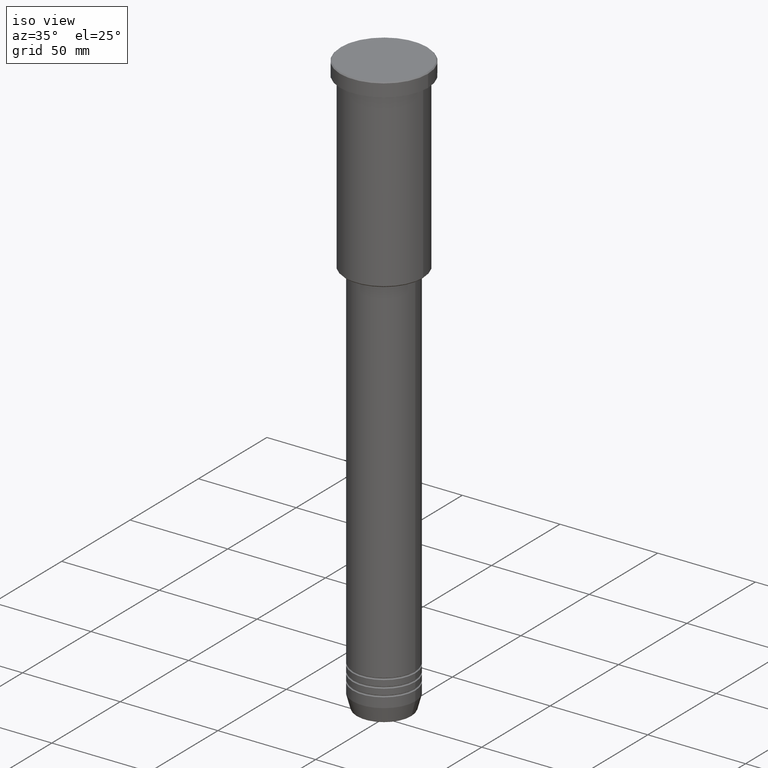
[diagram: clean part render]
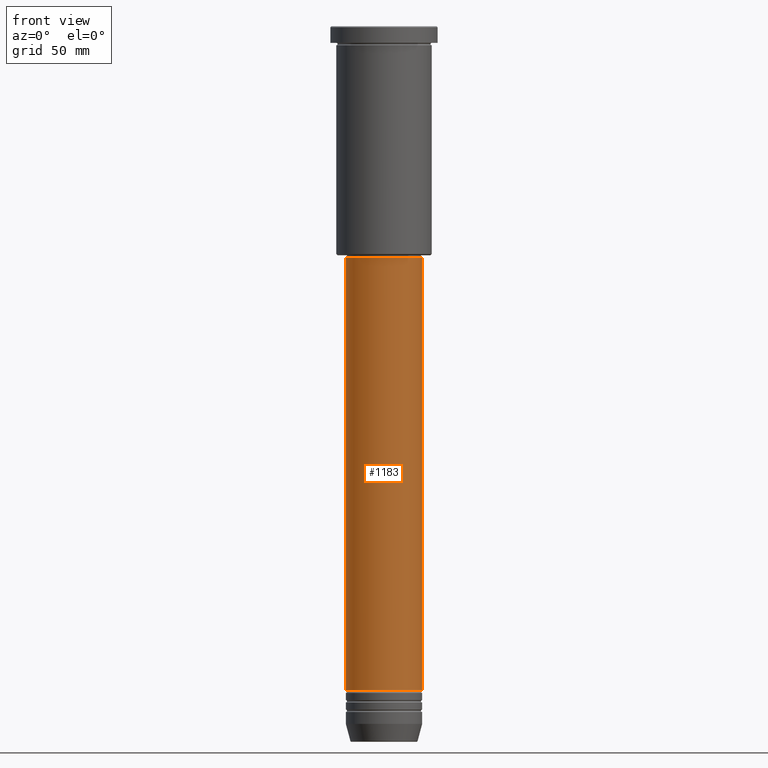
[diagram: tour spotlight — one face highlighted and labeled with its STEP entity id]
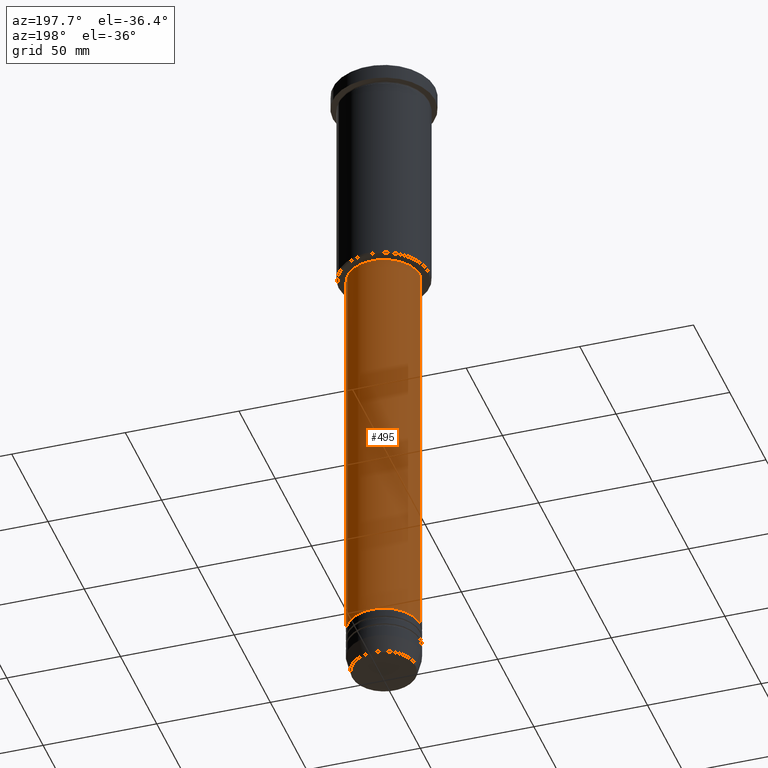
[diagram: tour spotlight — one face highlighted and labeled with its STEP entity id]
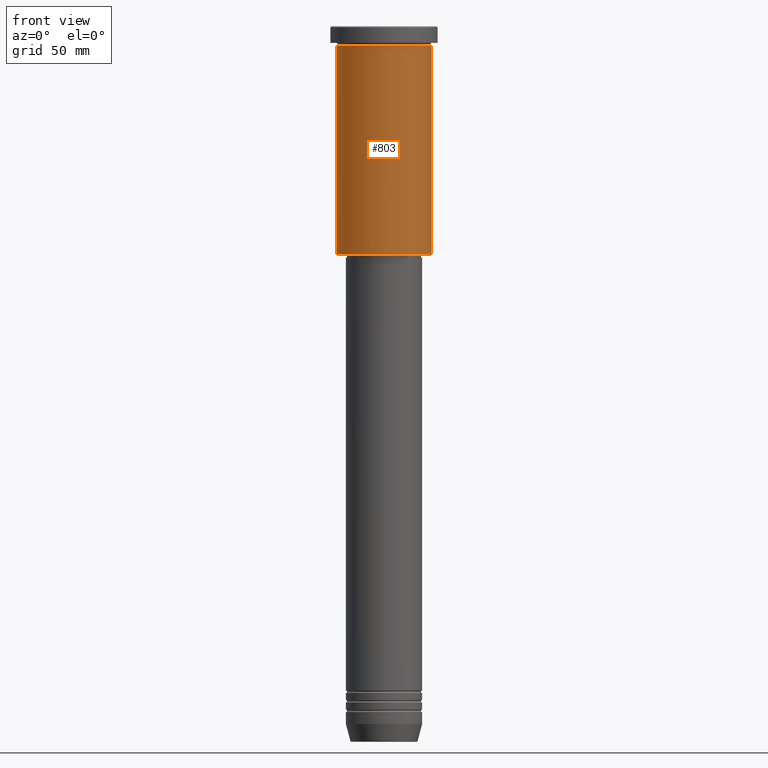
[diagram: tour spotlight — one face highlighted and labeled with its STEP entity id]
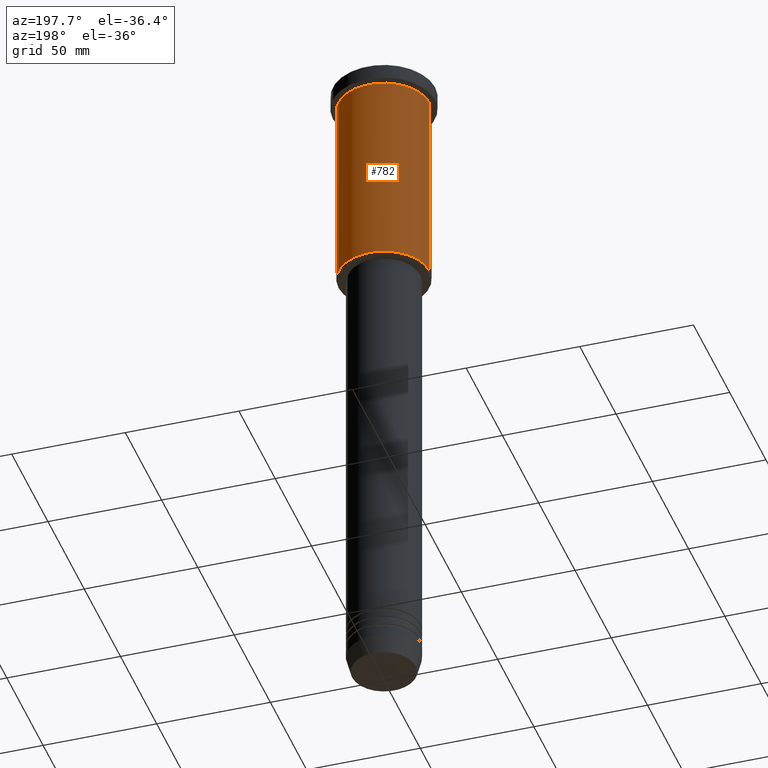
[diagram: tour spotlight — one face highlighted and labeled with its STEP entity id]
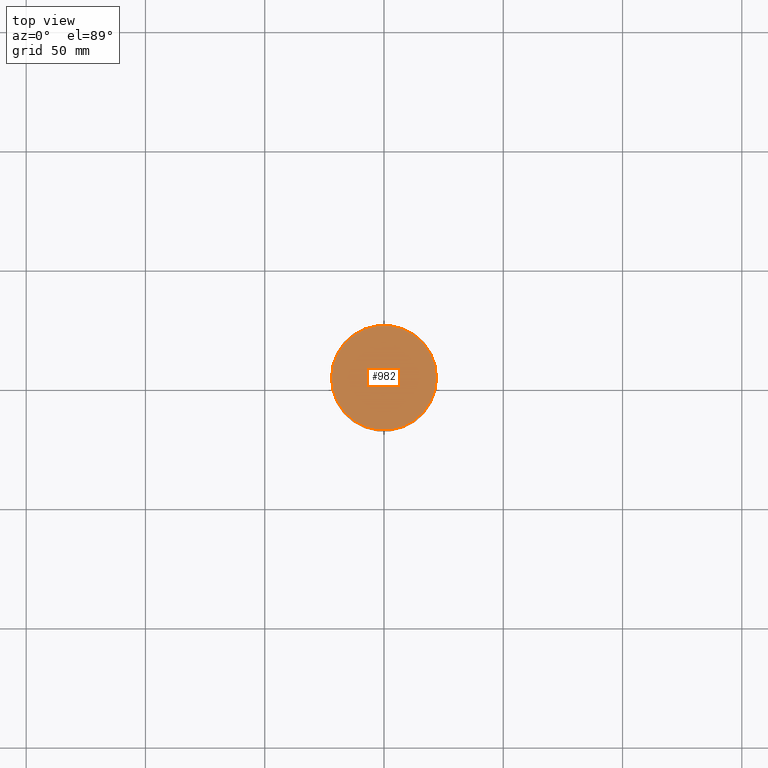
[diagram: tour spotlight — one face highlighted and labeled with its STEP entity id]
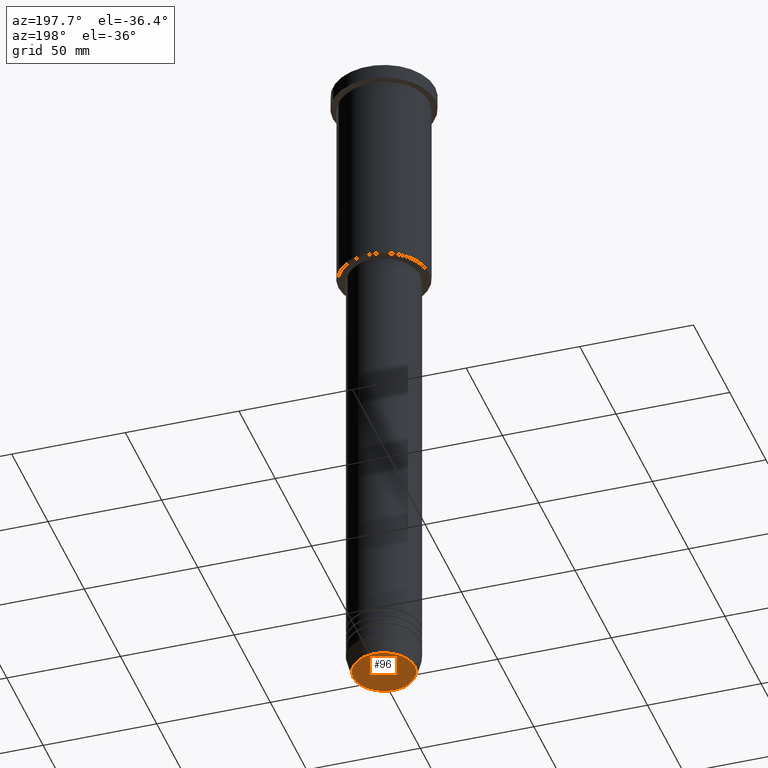
[diagram: tour spotlight — one face highlighted and labeled with its STEP entity id]
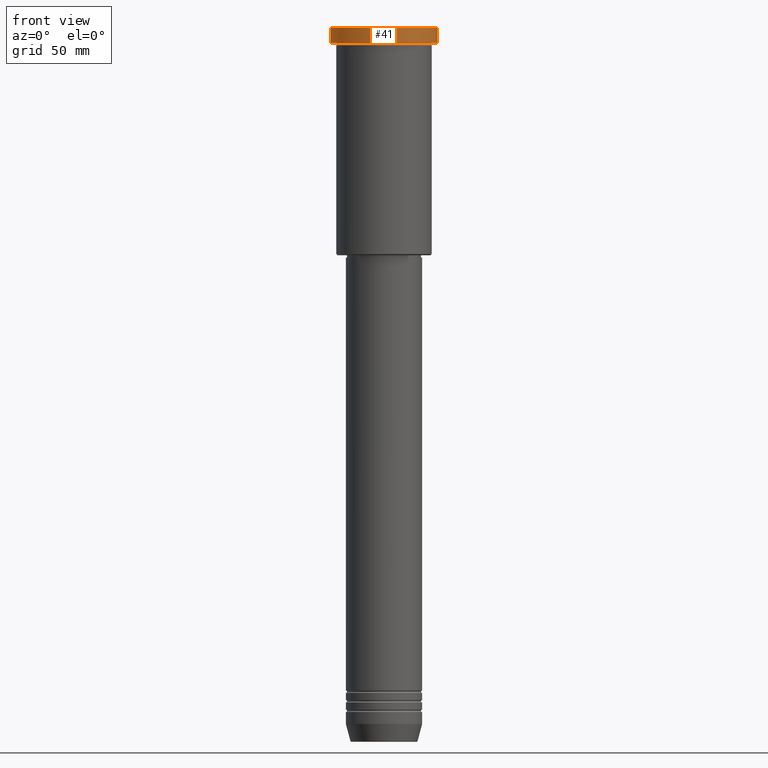
[diagram: tour spotlight — one face highlighted and labeled with its STEP entity id]
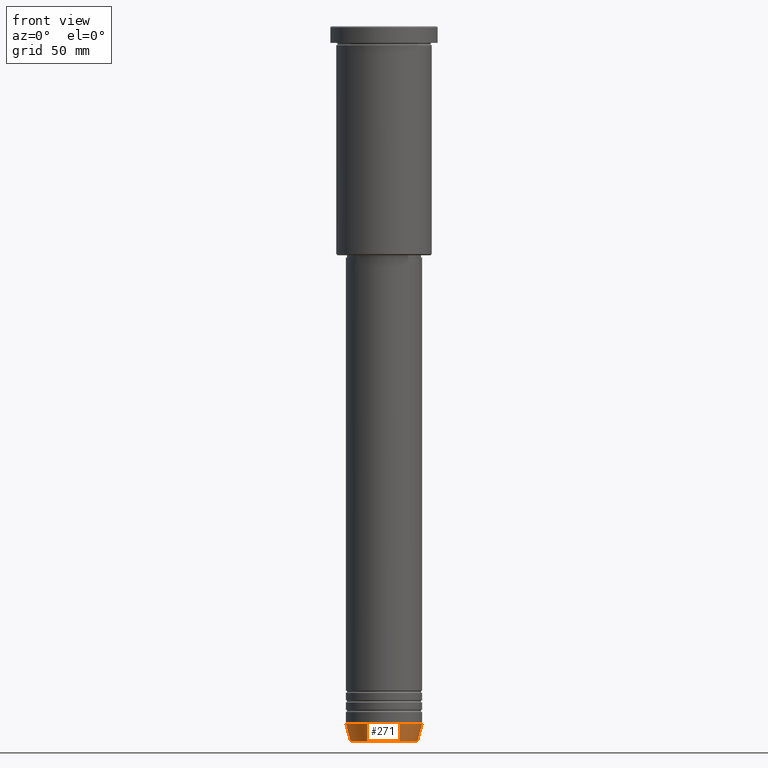
[diagram: tour spotlight — one face highlighted and labeled with its STEP entity id]
A machine part: a face-by-face anatomy tour. The part has 43 B-rep faces; the first image is the clean iso view, then the 8 largest visible faces are spotlighted one at a time (largest first), each with its STEP entity span.

Face 1 — front view, entity #1183. In plain terms, the highlighted cylindrical surface (partial cylindrical patch) has radius 16 mm, axis along (-0, -0, 1).
Definition (entity closure, byte-faithful):
#51 = ORIENTED_EDGE ( 'NONE', *, *, #909, .F. ) ;
#129 = CARTESIAN_POINT ( 'NONE',  ( 0.000000000000000000, 0.000000000000000000, -97.00000000000002842 ) ) ;
#140 = CYLINDRICAL_SURFACE ( 'NONE', #1065, 16.00000000000000000 ) ;
#184 = CIRCLE ( 'NONE', #777, 16.00000000000000000 ) ;
#202 = DIRECTION ( 'NONE',  ( 1.000000000000000000, 0.000000000000000000, 0.000000000000000000 ) ) ;
#247 = EDGE_CURVE ( 'NONE', #728, #262, #629, .T. ) ;
#259 = ORIENTED_EDGE ( 'NONE', *, *, #744, .F. ) ;
#262 = VERTEX_POINT ( 'NONE', #282 ) ;
#269 = CIRCLE ( 'NONE', #619, 16.00000000000000000 ) ;
#278 = DIRECTION ( 'NONE',  ( -0.000000000000000000, -0.000000000000000000, 1.000000000000000000 ) ) ;
#282 = CARTESIAN_POINT ( 'NONE',  ( 16.00000000000000000, 0.000000000000000000, -97.00000000000002842 ) ) ;
#354 = EDGE_CURVE ( 'NONE', #880, #728, #184, .T. ) ;
#393 = FACE_OUTER_BOUND ( 'NONE', #809, .T. ) ;
#395 = DIRECTION ( 'NONE',  ( -0.000000000000000000, -0.000000000000000000, 1.000000000000000000 ) ) ;
#453 = DIRECTION ( 'NONE',  ( -0.000000000000000000, -0.000000000000000000, 1.000000000000000000 ) ) ;
#500 = DIRECTION ( 'NONE',  ( -0.000000000000000000, -0.000000000000000000, 1.000000000000000000 ) ) ;
#568 = LINE ( 'NONE', #748, #817 ) ;
#593 = DIRECTION ( 'NONE',  ( 1.000000000000000000, 0.000000000000000000, 0.000000000000000000 ) ) ;
#619 = AXIS2_PLACEMENT_3D ( 'NONE', #129, #395, #767 ) ;
#629 = LINE ( 'NONE', #812, #756 ) ;
#660 = CARTESIAN_POINT ( 'NONE',  ( -16.00000000000000000, 1.959434878635765131E-15, -278.4999999999999432 ) ) ;
#665 = ORIENTED_EDGE ( 'NONE', *, *, #247, .T. ) ;
#672 = DIRECTION ( 'NONE',  ( -0.000000000000000000, -0.000000000000000000, 1.000000000000000000 ) ) ;
#728 = VERTEX_POINT ( 'NONE', #1034 ) ;
#744 = EDGE_CURVE ( 'NONE', #808, #262, #269, .T. ) ;
#748 = CARTESIAN_POINT ( 'NONE',  ( -16.00000000000000000, 1.959434878635765131E-15, 0.000000000000000000 ) ) ;
#756 = VECTOR ( 'NONE', #453, 1000.000000000000000 ) ;
#767 = DIRECTION ( 'NONE',  ( 1.000000000000000000, 0.000000000000000000, 0.000000000000000000 ) ) ;
#777 = AXIS2_PLACEMENT_3D ( 'NONE', #1102, #278, #202 ) ;
#786 = CARTESIAN_POINT ( 'NONE',  ( -16.00000000000000000, 1.959434878635765131E-15, -97.00000000000002842 ) ) ;
#808 = VERTEX_POINT ( 'NONE', #786 ) ;
#809 = EDGE_LOOP ( 'NONE', ( #51, #936, #665, #259 ) ) ;
#812 = CARTESIAN_POINT ( 'NONE',  ( 16.00000000000000000, 0.000000000000000000, 0.000000000000000000 ) ) ;
#817 = VECTOR ( 'NONE', #672, 1000.000000000000000 ) ;
#880 = VERTEX_POINT ( 'NONE', #660 ) ;
#909 = EDGE_CURVE ( 'NONE', #880, #808, #568, .T. ) ;
#936 = ORIENTED_EDGE ( 'NONE', *, *, #354, .T. ) ;
#943 = CARTESIAN_POINT ( 'NONE',  ( 0.000000000000000000, 0.000000000000000000, 0.000000000000000000 ) ) ;
#1034 = CARTESIAN_POINT ( 'NONE',  ( 16.00000000000000000, 0.000000000000000000, -278.4999999999999432 ) ) ;
#1065 = AXIS2_PLACEMENT_3D ( 'NONE', #943, #500, #593 ) ;
#1102 = CARTESIAN_POINT ( 'NONE',  ( 0.000000000000000000, 0.000000000000000000, -278.4999999999999432 ) ) ;
#1183 = ADVANCED_FACE ( 'NONE', ( #393 ), #140, .T. ) ;

Face 2 — auxiliary view, entity #495. In plain terms, the highlighted cylindrical surface (partial cylindrical patch) has radius 16 mm, axis along (-0, -0, 1).
Definition (entity closure, byte-faithful):
#38 = DIRECTION ( 'NONE',  ( 1.000000000000000000, 0.000000000000000000, 0.000000000000000000 ) ) ;
#52 = DIRECTION ( 'NONE',  ( 1.000000000000000000, 0.000000000000000000, 0.000000000000000000 ) ) ;
#94 = CARTESIAN_POINT ( 'NONE',  ( 0.000000000000000000, 0.000000000000000000, -278.4999999999999432 ) ) ;
#227 = AXIS2_PLACEMENT_3D ( 'NONE', #1057, #859, #38 ) ;
#233 = ORIENTED_EDGE ( 'NONE', *, *, #526, .F. ) ;
#243 = CIRCLE ( 'NONE', #1099, 16.00000000000000000 ) ;
#247 = EDGE_CURVE ( 'NONE', #728, #262, #629, .T. ) ;
#257 = AXIS2_PLACEMENT_3D ( 'NONE', #94, #623, #455 ) ;
#262 = VERTEX_POINT ( 'NONE', #282 ) ;
#282 = CARTESIAN_POINT ( 'NONE',  ( 16.00000000000000000, 0.000000000000000000, -97.00000000000002842 ) ) ;
#331 = FACE_OUTER_BOUND ( 'NONE', #939, .T. ) ;
#418 = CYLINDRICAL_SURFACE ( 'NONE', #227, 16.00000000000000000 ) ;
#424 = CIRCLE ( 'NONE', #257, 16.00000000000000000 ) ;
#453 = DIRECTION ( 'NONE',  ( -0.000000000000000000, -0.000000000000000000, 1.000000000000000000 ) ) ;
#455 = DIRECTION ( 'NONE',  ( 1.000000000000000000, 0.000000000000000000, 0.000000000000000000 ) ) ;
#492 = ORIENTED_EDGE ( 'NONE', *, *, #909, .T. ) ;
#495 = ADVANCED_FACE ( 'NONE', ( #331 ), #418, .T. ) ;
#503 = ORIENTED_EDGE ( 'NONE', *, *, #247, .F. ) ;
#516 = DIRECTION ( 'NONE',  ( -0.000000000000000000, -0.000000000000000000, 1.000000000000000000 ) ) ;
#526 = EDGE_CURVE ( 'NONE', #262, #808, #243, .T. ) ;
#568 = LINE ( 'NONE', #748, #817 ) ;
#620 = ORIENTED_EDGE ( 'NONE', *, *, #1168, .T. ) ;
#623 = DIRECTION ( 'NONE',  ( -0.000000000000000000, -0.000000000000000000, 1.000000000000000000 ) ) ;
#629 = LINE ( 'NONE', #812, #756 ) ;
#660 = CARTESIAN_POINT ( 'NONE',  ( -16.00000000000000000, 1.959434878635765131E-15, -278.4999999999999432 ) ) ;
#672 = DIRECTION ( 'NONE',  ( -0.000000000000000000, -0.000000000000000000, 1.000000000000000000 ) ) ;
#728 = VERTEX_POINT ( 'NONE', #1034 ) ;
#748 = CARTESIAN_POINT ( 'NONE',  ( -16.00000000000000000, 1.959434878635765131E-15, 0.000000000000000000 ) ) ;
#756 = VECTOR ( 'NONE', #453, 1000.000000000000000 ) ;
#786 = CARTESIAN_POINT ( 'NONE',  ( -16.00000000000000000, 1.959434878635765131E-15, -97.00000000000002842 ) ) ;
#790 = CARTESIAN_POINT ( 'NONE',  ( 0.000000000000000000, 0.000000000000000000, -97.00000000000002842 ) ) ;
#808 = VERTEX_POINT ( 'NONE', #786 ) ;
#812 = CARTESIAN_POINT ( 'NONE',  ( 16.00000000000000000, 0.000000000000000000, 0.000000000000000000 ) ) ;
#817 = VECTOR ( 'NONE', #672, 1000.000000000000000 ) ;
#859 = DIRECTION ( 'NONE',  ( -0.000000000000000000, -0.000000000000000000, 1.000000000000000000 ) ) ;
#880 = VERTEX_POINT ( 'NONE', #660 ) ;
#909 = EDGE_CURVE ( 'NONE', #880, #808, #568, .T. ) ;
#939 = EDGE_LOOP ( 'NONE', ( #620, #492, #233, #503 ) ) ;
#1034 = CARTESIAN_POINT ( 'NONE',  ( 16.00000000000000000, 0.000000000000000000, -278.4999999999999432 ) ) ;
#1057 = CARTESIAN_POINT ( 'NONE',  ( 0.000000000000000000, 0.000000000000000000, 0.000000000000000000 ) ) ;
#1099 = AXIS2_PLACEMENT_3D ( 'NONE', #790, #516, #52 ) ;
#1168 = EDGE_CURVE ( 'NONE', #728, #880, #424, .T. ) ;

Face 3 — front view, entity #803. In plain terms, the highlighted cylindrical surface (partial cylindrical patch) has radius 20 mm, axis along (-0, -0, 1).
Definition (entity closure, byte-faithful):
#45 = EDGE_CURVE ( 'NONE', #199, #1123, #615, .T. ) ;
#113 = LINE ( 'NONE', #1031, #642 ) ;
#183 = CARTESIAN_POINT ( 'NONE',  ( 0.000000000000000000, 0.000000000000000000, 0.000000000000000000 ) ) ;
#187 = EDGE_LOOP ( 'NONE', ( #942, #891, #1007, #481 ) ) ;
#199 = VERTEX_POINT ( 'NONE', #764 ) ;
#222 = AXIS2_PLACEMENT_3D ( 'NONE', #183, #630, #899 ) ;
#324 = CARTESIAN_POINT ( 'NONE',  ( 0.000000000000000000, 0.000000000000000000, -95.49999999999997158 ) ) ;
#370 = VERTEX_POINT ( 'NONE', #583 ) ;
#410 = EDGE_CURVE ( 'NONE', #199, #1051, #890, .T. ) ;
#420 = CIRCLE ( 'NONE', #622, 20.00000000000000000 ) ;
#477 = DIRECTION ( 'NONE',  ( -0.000000000000000000, -0.000000000000000000, 1.000000000000000000 ) ) ;
#481 = ORIENTED_EDGE ( 'NONE', *, *, #948, .F. ) ;
#491 = CARTESIAN_POINT ( 'NONE',  ( 0.000000000000000000, 0.000000000000000000, -7.999999999999994671 ) ) ;
#507 = DIRECTION ( 'NONE',  ( -1.000000000000000000, 0.000000000000000000, 0.000000000000000000 ) ) ;
#539 = CYLINDRICAL_SURFACE ( 'NONE', #222, 20.00000000000000355 ) ;
#544 = VECTOR ( 'NONE', #1170, 1000.000000000000000 ) ;
#583 = CARTESIAN_POINT ( 'NONE',  ( 20.00000000000000000, 0.000000000000000000, -7.999999999999994671 ) ) ;
#595 = DIRECTION ( 'NONE',  ( -0.000000000000000000, -0.000000000000000000, 1.000000000000000000 ) ) ;
#615 = LINE ( 'NONE', #902, #544 ) ;
#622 = AXIS2_PLACEMENT_3D ( 'NONE', #491, #856, #1040 ) ;
#630 = DIRECTION ( 'NONE',  ( -0.000000000000000000, -0.000000000000000000, 1.000000000000000000 ) ) ;
#642 = VECTOR ( 'NONE', #477, 1000.000000000000000 ) ;
#714 = CARTESIAN_POINT ( 'NONE',  ( 20.00000000000000355, 0.000000000000000000, -95.49999999999997158 ) ) ;
#719 = FACE_OUTER_BOUND ( 'NONE', #187, .T. ) ;
#725 = AXIS2_PLACEMENT_3D ( 'NONE', #324, #595, #507 ) ;
#764 = CARTESIAN_POINT ( 'NONE',  ( -20.00000000000000355, 2.449293598294706907E-15, -95.49999999999997158 ) ) ;
#803 = ADVANCED_FACE ( 'NONE', ( #719 ), #539, .T. ) ;
#856 = DIRECTION ( 'NONE',  ( -0.000000000000000000, -0.000000000000000000, 1.000000000000000000 ) ) ;
#890 = CIRCLE ( 'NONE', #725, 20.00000000000000355 ) ;
#891 = ORIENTED_EDGE ( 'NONE', *, *, #410, .T. ) ;
#899 = DIRECTION ( 'NONE',  ( 1.000000000000000000, 0.000000000000000000, 0.000000000000000000 ) ) ;
#902 = CARTESIAN_POINT ( 'NONE',  ( -20.00000000000000355, 2.449293598294706907E-15, 0.000000000000000000 ) ) ;
#942 = ORIENTED_EDGE ( 'NONE', *, *, #45, .F. ) ;
#948 = EDGE_CURVE ( 'NONE', #1123, #370, #420, .T. ) ;
#953 = CARTESIAN_POINT ( 'NONE',  ( -20.00000000000000000, 2.449293598294706513E-15, -7.999999999999994671 ) ) ;
#1007 = ORIENTED_EDGE ( 'NONE', *, *, #1142, .T. ) ;
#1031 = CARTESIAN_POINT ( 'NONE',  ( 20.00000000000000355, 0.000000000000000000, 0.000000000000000000 ) ) ;
#1040 = DIRECTION ( 'NONE',  ( 1.000000000000000000, 0.000000000000000000, 0.000000000000000000 ) ) ;
#1051 = VERTEX_POINT ( 'NONE', #714 ) ;
#1123 = VERTEX_POINT ( 'NONE', #953 ) ;
#1142 = EDGE_CURVE ( 'NONE', #1051, #370, #113, .T. ) ;
#1170 = DIRECTION ( 'NONE',  ( -0.000000000000000000, -0.000000000000000000, 1.000000000000000000 ) ) ;

Face 4 — auxiliary view, entity #782. In plain terms, the highlighted cylindrical surface (partial cylindrical patch) has radius 20 mm, axis along (-0, -0, 1).
Definition (entity closure, byte-faithful):
#45 = EDGE_CURVE ( 'NONE', #199, #1123, #615, .T. ) ;
#54 = ORIENTED_EDGE ( 'NONE', *, *, #1142, .F. ) ;
#63 = CARTESIAN_POINT ( 'NONE',  ( 0.000000000000000000, 0.000000000000000000, -95.49999999999997158 ) ) ;
#113 = LINE ( 'NONE', #1031, #642 ) ;
#134 = DIRECTION ( 'NONE',  ( 1.000000000000000000, 0.000000000000000000, 0.000000000000000000 ) ) ;
#164 = DIRECTION ( 'NONE',  ( -0.000000000000000000, -0.000000000000000000, 1.000000000000000000 ) ) ;
#189 = FACE_OUTER_BOUND ( 'NONE', #224, .T. ) ;
#199 = VERTEX_POINT ( 'NONE', #764 ) ;
#224 = EDGE_LOOP ( 'NONE', ( #863, #462, #366, #54 ) ) ;
#229 = EDGE_CURVE ( 'NONE', #370, #1123, #926, .T. ) ;
#252 = CARTESIAN_POINT ( 'NONE',  ( 0.000000000000000000, 0.000000000000000000, -7.999999999999994671 ) ) ;
#366 = ORIENTED_EDGE ( 'NONE', *, *, #229, .F. ) ;
#370 = VERTEX_POINT ( 'NONE', #583 ) ;
#400 = AXIS2_PLACEMENT_3D ( 'NONE', #989, #1096, #871 ) ;
#403 = AXIS2_PLACEMENT_3D ( 'NONE', #252, #675, #134 ) ;
#422 = DIRECTION ( 'NONE',  ( -1.000000000000000000, 0.000000000000000000, 0.000000000000000000 ) ) ;
#462 = ORIENTED_EDGE ( 'NONE', *, *, #45, .T. ) ;
#477 = DIRECTION ( 'NONE',  ( -0.000000000000000000, -0.000000000000000000, 1.000000000000000000 ) ) ;
#513 = AXIS2_PLACEMENT_3D ( 'NONE', #63, #164, #422 ) ;
#544 = VECTOR ( 'NONE', #1170, 1000.000000000000000 ) ;
#557 = EDGE_CURVE ( 'NONE', #1051, #199, #836, .T. ) ;
#583 = CARTESIAN_POINT ( 'NONE',  ( 20.00000000000000000, 0.000000000000000000, -7.999999999999994671 ) ) ;
#615 = LINE ( 'NONE', #902, #544 ) ;
#642 = VECTOR ( 'NONE', #477, 1000.000000000000000 ) ;
#675 = DIRECTION ( 'NONE',  ( -0.000000000000000000, -0.000000000000000000, 1.000000000000000000 ) ) ;
#714 = CARTESIAN_POINT ( 'NONE',  ( 20.00000000000000355, 0.000000000000000000, -95.49999999999997158 ) ) ;
#764 = CARTESIAN_POINT ( 'NONE',  ( -20.00000000000000355, 2.449293598294706907E-15, -95.49999999999997158 ) ) ;
#782 = ADVANCED_FACE ( 'NONE', ( #189 ), #810, .T. ) ;
#810 = CYLINDRICAL_SURFACE ( 'NONE', #400, 20.00000000000000355 ) ;
#836 = CIRCLE ( 'NONE', #513, 20.00000000000000355 ) ;
#863 = ORIENTED_EDGE ( 'NONE', *, *, #557, .T. ) ;
#871 = DIRECTION ( 'NONE',  ( 1.000000000000000000, 0.000000000000000000, 0.000000000000000000 ) ) ;
#902 = CARTESIAN_POINT ( 'NONE',  ( -20.00000000000000355, 2.449293598294706907E-15, 0.000000000000000000 ) ) ;
#926 = CIRCLE ( 'NONE', #403, 20.00000000000000000 ) ;
#953 = CARTESIAN_POINT ( 'NONE',  ( -20.00000000000000000, 2.449293598294706513E-15, -7.999999999999994671 ) ) ;
#989 = CARTESIAN_POINT ( 'NONE',  ( 0.000000000000000000, 0.000000000000000000, 0.000000000000000000 ) ) ;
#1031 = CARTESIAN_POINT ( 'NONE',  ( 20.00000000000000355, 0.000000000000000000, 0.000000000000000000 ) ) ;
#1051 = VERTEX_POINT ( 'NONE', #714 ) ;
#1096 = DIRECTION ( 'NONE',  ( -0.000000000000000000, -0.000000000000000000, 1.000000000000000000 ) ) ;
#1123 = VERTEX_POINT ( 'NONE', #953 ) ;
#1142 = EDGE_CURVE ( 'NONE', #1051, #370, #113, .T. ) ;
#1170 = DIRECTION ( 'NONE',  ( -0.000000000000000000, -0.000000000000000000, 1.000000000000000000 ) ) ;

Face 5 — top view, entity #982. In plain terms, the highlighted planar face has unit normal (0, -0, 1).
Definition (entity closure, byte-faithful):
#14 = CARTESIAN_POINT ( 'NONE',  ( 0.000000000000000000, 0.000000000000000000, 0.000000000000000000 ) ) ;
#20 = FACE_OUTER_BOUND ( 'NONE', #1080, .T. ) ;
#74 = CARTESIAN_POINT ( 'NONE',  ( 0.000000000000000000, 0.000000000000000000, 0.000000000000000000 ) ) ;
#127 = EDGE_CURVE ( 'NONE', #1038, #1009, #700, .T. ) ;
#157 = DIRECTION ( 'NONE',  ( -0.000000000000000000, -0.000000000000000000, 1.000000000000000000 ) ) ;
#180 = AXIS2_PLACEMENT_3D ( 'NONE', #74, #157, #770 ) ;
#238 = CARTESIAN_POINT ( 'NONE',  ( 21.99999999999999289, 2.724839128102860202E-15, 0.000000000000000000 ) ) ;
#288 = DIRECTION ( 'NONE',  ( 1.000000000000000000, 0.000000000000000000, 0.000000000000000000 ) ) ;
#346 = AXIS2_PLACEMENT_3D ( 'NONE', #14, #372, #288 ) ;
#372 = DIRECTION ( 'NONE',  ( 0.000000000000000000, -0.000000000000000000, 1.000000000000000000 ) ) ;
#430 = EDGE_CURVE ( 'NONE', #1009, #1038, #947, .T. ) ;
#432 = CARTESIAN_POINT ( 'NONE',  ( -21.99999999999999289, 0.000000000000000000, 0.000000000000000000 ) ) ;
#612 = DIRECTION ( 'NONE',  ( 1.000000000000000000, 0.000000000000000000, 0.000000000000000000 ) ) ;
#681 = ORIENTED_EDGE ( 'NONE', *, *, #430, .T. ) ;
#700 = CIRCLE ( 'NONE', #180, 21.99999999999999289 ) ;
#703 = DIRECTION ( 'NONE',  ( -0.000000000000000000, -0.000000000000000000, 1.000000000000000000 ) ) ;
#741 = AXIS2_PLACEMENT_3D ( 'NONE', #968, #703, #612 ) ;
#770 = DIRECTION ( 'NONE',  ( 1.000000000000000000, 0.000000000000000000, 0.000000000000000000 ) ) ;
#945 = ORIENTED_EDGE ( 'NONE', *, *, #127, .T. ) ;
#947 = CIRCLE ( 'NONE', #741, 21.99999999999999289 ) ;
#968 = CARTESIAN_POINT ( 'NONE',  ( 0.000000000000000000, 0.000000000000000000, 0.000000000000000000 ) ) ;
#982 = ADVANCED_FACE ( 'NONE', ( #20 ), #1015, .T. ) ;
#1009 = VERTEX_POINT ( 'NONE', #238 ) ;
#1015 = PLANE ( 'NONE',  #346 ) ;
#1038 = VERTEX_POINT ( 'NONE', #432 ) ;
#1080 = EDGE_LOOP ( 'NONE', ( #945, #681 ) ) ;

Face 6 — auxiliary view, entity #96. In plain terms, the highlighted planar face has unit normal (0, -0, 1).
Definition (entity closure, byte-faithful):
#22 = EDGE_CURVE ( 'NONE', #1101, #592, #597, .T. ) ;
#59 = DIRECTION ( 'NONE',  ( 0.000000000000000000, 0.000000000000000000, -1.000000000000000000 ) ) ;
#95 = EDGE_LOOP ( 'NONE', ( #643, #570 ) ) ;
#96 = ADVANCED_FACE ( 'NONE', ( #1162 ), #1017, .F. ) ;
#144 = DIRECTION ( 'NONE',  ( 1.000000000000000000, 0.000000000000000000, 0.000000000000000000 ) ) ;
#147 = AXIS2_PLACEMENT_3D ( 'NONE', #1157, #59, #144 ) ;
#153 = CARTESIAN_POINT ( 'NONE',  ( -13.60671756277709399, 1.695915260300171258E-15, -300.0000000000000000 ) ) ;
#200 = CARTESIAN_POINT ( 'NONE',  ( 0.000000000000000000, 0.000000000000000000, -300.0000000000000000 ) ) ;
#203 = CIRCLE ( 'NONE', #147, 13.60671756277709399 ) ;
#283 = CARTESIAN_POINT ( 'NONE',  ( 13.60671756277709399, 0.000000000000000000, -300.0000000000000000 ) ) ;
#318 = DIRECTION ( 'NONE',  ( 1.000000000000000000, 0.000000000000000000, 0.000000000000000000 ) ) ;
#377 = AXIS2_PLACEMENT_3D ( 'NONE', #783, #1140, #318 ) ;
#381 = DIRECTION ( 'NONE',  ( 1.000000000000000000, 0.000000000000000000, 0.000000000000000000 ) ) ;
#388 = DIRECTION ( 'NONE',  ( 0.000000000000000000, -0.000000000000000000, 1.000000000000000000 ) ) ;
#472 = EDGE_CURVE ( 'NONE', #592, #1101, #203, .T. ) ;
#570 = ORIENTED_EDGE ( 'NONE', *, *, #22, .T. ) ;
#592 = VERTEX_POINT ( 'NONE', #283 ) ;
#597 = CIRCLE ( 'NONE', #377, 13.60671756277709399 ) ;
#643 = ORIENTED_EDGE ( 'NONE', *, *, #472, .T. ) ;
#783 = CARTESIAN_POINT ( 'NONE',  ( 0.000000000000000000, 0.000000000000000000, -300.0000000000000000 ) ) ;
#1017 = PLANE ( 'NONE',  #1094 ) ;
#1094 = AXIS2_PLACEMENT_3D ( 'NONE', #200, #388, #381 ) ;
#1101 = VERTEX_POINT ( 'NONE', #153 ) ;
#1140 = DIRECTION ( 'NONE',  ( 0.000000000000000000, 0.000000000000000000, -1.000000000000000000 ) ) ;
#1157 = CARTESIAN_POINT ( 'NONE',  ( 0.000000000000000000, 0.000000000000000000, -300.0000000000000000 ) ) ;
#1162 = FACE_OUTER_BOUND ( 'NONE', #95, .T. ) ;

Face 7 — front view, entity #41. In plain terms, the highlighted cylindrical surface (partial cylindrical patch) has radius 22.5 mm, axis along (-0, -0, 1).
Definition (entity closure, byte-faithful):
#5 = ORIENTED_EDGE ( 'NONE', *, *, #58, .T. ) ;
#40 = VECTOR ( 'NONE', #273, 1000.000000000000000 ) ;
#41 = ADVANCED_FACE ( 'NONE', ( #248 ), #1087, .T. ) ;
#58 = EDGE_CURVE ( 'NONE', #674, #1153, #415, .T. ) ;
#65 = CARTESIAN_POINT ( 'NONE',  ( 0.000000000000000000, 0.000000000000000000, -6.999999999999995559 ) ) ;
#79 = DIRECTION ( 'NONE',  ( -0.000000000000000000, -0.000000000000000000, 1.000000000000000000 ) ) ;
#88 = LINE ( 'NONE', #175, #40 ) ;
#123 = AXIS2_PLACEMENT_3D ( 'NONE', #65, #79, #339 ) ;
#141 = DIRECTION ( 'NONE',  ( 1.000000000000000000, 0.000000000000000000, 0.000000000000000000 ) ) ;
#161 = ORIENTED_EDGE ( 'NONE', *, *, #797, .T. ) ;
#175 = CARTESIAN_POINT ( 'NONE',  ( 22.50000000000000000, 0.000000000000000000, 0.000000000000000000 ) ) ;
#220 = LINE ( 'NONE', #579, #739 ) ;
#230 = EDGE_CURVE ( 'NONE', #674, #769, #220, .T. ) ;
#248 = FACE_OUTER_BOUND ( 'NONE', #497, .T. ) ;
#273 = DIRECTION ( 'NONE',  ( -0.000000000000000000, -0.000000000000000000, 1.000000000000000000 ) ) ;
#313 = CARTESIAN_POINT ( 'NONE',  ( -22.50000000000000000, 2.755455298081544778E-15, -0.4999999999999935052 ) ) ;
#339 = DIRECTION ( 'NONE',  ( 1.000000000000000000, 0.000000000000000000, 0.000000000000000000 ) ) ;
#382 = CARTESIAN_POINT ( 'NONE',  ( 22.50000000000000000, 0.000000000000000000, -6.999999999999995559 ) ) ;
#415 = CIRCLE ( 'NONE', #123, 22.50000000000000000 ) ;
#470 = EDGE_CURVE ( 'NONE', #1143, #769, #582, .T. ) ;
#497 = EDGE_LOOP ( 'NONE', ( #563, #5, #161, #1182 ) ) ;
#542 = DIRECTION ( 'NONE',  ( 1.000000000000000000, 0.000000000000000000, 0.000000000000000000 ) ) ;
#563 = ORIENTED_EDGE ( 'NONE', *, *, #230, .F. ) ;
#579 = CARTESIAN_POINT ( 'NONE',  ( -22.50000000000000000, 2.755455298081544778E-15, 0.000000000000000000 ) ) ;
#582 = CIRCLE ( 'NONE', #1177, 22.50000000000000000 ) ;
#674 = VERTEX_POINT ( 'NONE', #1054 ) ;
#693 = DIRECTION ( 'NONE',  ( 0.000000000000000000, 0.000000000000000000, -1.000000000000000000 ) ) ;
#739 = VECTOR ( 'NONE', #946, 1000.000000000000000 ) ;
#750 = CARTESIAN_POINT ( 'NONE',  ( 22.50000000000000000, 0.000000000000000000, -0.4999999999999935052 ) ) ;
#769 = VERTEX_POINT ( 'NONE', #313 ) ;
#779 = CARTESIAN_POINT ( 'NONE',  ( 0.000000000000000000, 0.000000000000000000, -0.4999999999999935052 ) ) ;
#797 = EDGE_CURVE ( 'NONE', #1153, #1143, #88, .T. ) ;
#884 = CARTESIAN_POINT ( 'NONE',  ( 0.000000000000000000, 0.000000000000000000, 0.000000000000000000 ) ) ;
#946 = DIRECTION ( 'NONE',  ( -0.000000000000000000, -0.000000000000000000, 1.000000000000000000 ) ) ;
#1054 = CARTESIAN_POINT ( 'NONE',  ( -22.50000000000000000, 2.755455298081544778E-15, -6.999999999999995559 ) ) ;
#1072 = DIRECTION ( 'NONE',  ( -0.000000000000000000, -0.000000000000000000, 1.000000000000000000 ) ) ;
#1087 = CYLINDRICAL_SURFACE ( 'NONE', #1112, 22.50000000000000000 ) ;
#1112 = AXIS2_PLACEMENT_3D ( 'NONE', #884, #1072, #542 ) ;
#1143 = VERTEX_POINT ( 'NONE', #750 ) ;
#1153 = VERTEX_POINT ( 'NONE', #382 ) ;
#1177 = AXIS2_PLACEMENT_3D ( 'NONE', #779, #693, #141 ) ;
#1182 = ORIENTED_EDGE ( 'NONE', *, *, #470, .T. ) ;

Face 8 — front view, entity #271. In plain terms, the highlighted conical surface has half-angle 15 deg.
Definition (entity closure, byte-faithful):
#4 = CIRCLE ( 'NONE', #687, 14.08968047592161632 ) ;
#26 = VERTEX_POINT ( 'NONE', #873 ) ;
#27 = VECTOR ( 'NONE', #428, 1000.000000000000000 ) ;
#83 = DIRECTION ( 'NONE',  ( 1.000000000000000000, 0.000000000000000000, 0.000000000000000000 ) ) ;
#93 = DIRECTION ( 'NONE',  ( 0.2588190451025213501, 0.000000000000000000, 0.9659258262890680902 ) ) ;
#148 = CARTESIAN_POINT ( 'NONE',  ( -14.08968047592161632, 1.842461544110200874E-15, -299.6294095225512137 ) ) ;
#228 = AXIS2_PLACEMENT_3D ( 'NONE', #320, #826, #1126 ) ;
#236 = LINE ( 'NONE', #1165, #27 ) ;
#242 = CONICAL_SURFACE ( 'NONE', #274, 16.00000000000000000, 0.2617993877991500740 ) ;
#271 = ADVANCED_FACE ( 'NONE', ( #722 ), #242, .T. ) ;
#274 = AXIS2_PLACEMENT_3D ( 'NONE', #1085, #541, #83 ) ;
#307 = ORIENTED_EDGE ( 'NONE', *, *, #849, .F. ) ;
#320 = CARTESIAN_POINT ( 'NONE',  ( 0.000000000000000000, 0.000000000000000000, -292.5000000000000000 ) ) ;
#396 = EDGE_CURVE ( 'NONE', #517, #411, #236, .T. ) ;
#407 = DIRECTION ( 'NONE',  ( 1.000000000000000000, 0.000000000000000000, 0.000000000000000000 ) ) ;
#411 = VERTEX_POINT ( 'NONE', #887 ) ;
#428 = DIRECTION ( 'NONE',  ( -0.2588190451025213501, 3.169619151431772337E-17, 0.9659258262890680902 ) ) ;
#517 = VERTEX_POINT ( 'NONE', #148 ) ;
#541 = DIRECTION ( 'NONE',  ( -0.000000000000000000, -0.000000000000000000, 1.000000000000000000 ) ) ;
#550 = CARTESIAN_POINT ( 'NONE',  ( 16.00000000000000000, 0.000000000000000000, -292.5000000000000000 ) ) ;
#567 = ORIENTED_EDGE ( 'NONE', *, *, #654, .T. ) ;
#654 = EDGE_CURVE ( 'NONE', #26, #1108, #912, .T. ) ;
#687 = AXIS2_PLACEMENT_3D ( 'NONE', #1141, #959, #407 ) ;
#722 = FACE_OUTER_BOUND ( 'NONE', #1050, .T. ) ;
#801 = VECTOR ( 'NONE', #93, 1000.000000000000000 ) ;
#826 = DIRECTION ( 'NONE',  ( -0.000000000000000000, -0.000000000000000000, 1.000000000000000000 ) ) ;
#849 = EDGE_CURVE ( 'NONE', #411, #1108, #1113, .T. ) ;
#873 = CARTESIAN_POINT ( 'NONE',  ( 14.08968047592161632, 0.000000000000000000, -299.6294095225512137 ) ) ;
#887 = CARTESIAN_POINT ( 'NONE',  ( -16.00000000000000000, 1.959434878635765131E-15, -292.5000000000000000 ) ) ;
#912 = LINE ( 'NONE', #1021, #801 ) ;
#959 = DIRECTION ( 'NONE',  ( -0.000000000000000000, -0.000000000000000000, 1.000000000000000000 ) ) ;
#1021 = CARTESIAN_POINT ( 'NONE',  ( 16.00000000000000000, 0.000000000000000000, -292.5000000000000000 ) ) ;
#1050 = EDGE_LOOP ( 'NONE', ( #1134, #1116, #567, #307 ) ) ;
#1061 = EDGE_CURVE ( 'NONE', #517, #26, #4, .T. ) ;
#1085 = CARTESIAN_POINT ( 'NONE',  ( 0.000000000000000000, 0.000000000000000000, -292.5000000000000000 ) ) ;
#1108 = VERTEX_POINT ( 'NONE', #550 ) ;
#1113 = CIRCLE ( 'NONE', #228, 16.00000000000000000 ) ;
#1116 = ORIENTED_EDGE ( 'NONE', *, *, #1061, .T. ) ;
#1126 = DIRECTION ( 'NONE',  ( 1.000000000000000000, 0.000000000000000000, 0.000000000000000000 ) ) ;
#1134 = ORIENTED_EDGE ( 'NONE', *, *, #396, .F. ) ;
#1141 = CARTESIAN_POINT ( 'NONE',  ( 0.000000000000000000, 0.000000000000000000, -299.6294095225512137 ) ) ;
#1165 = CARTESIAN_POINT ( 'NONE',  ( -16.00000000000000000, 1.959434878635765131E-15, -292.5000000000000000 ) ) ;